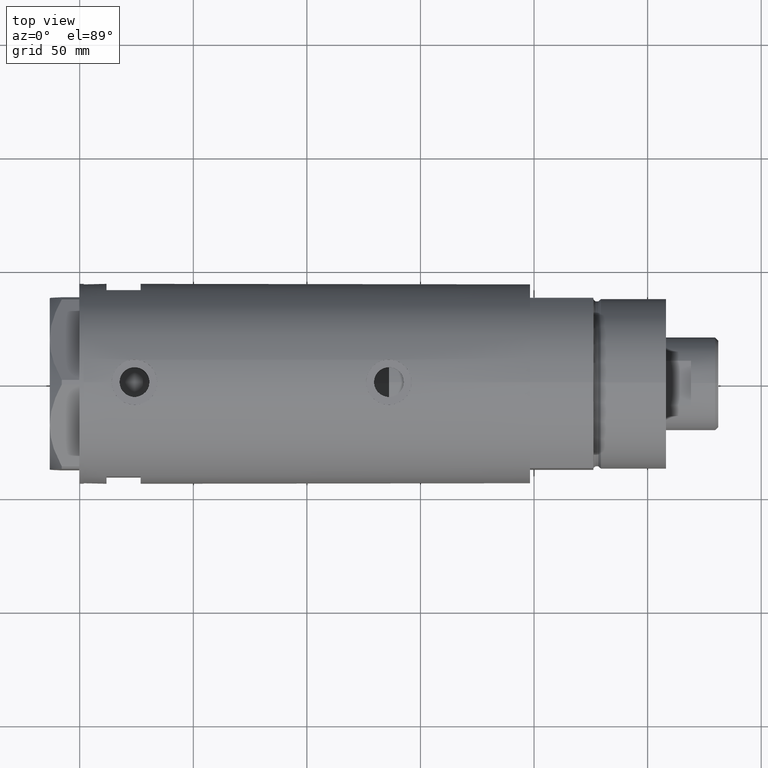
[diagram: clean part render]
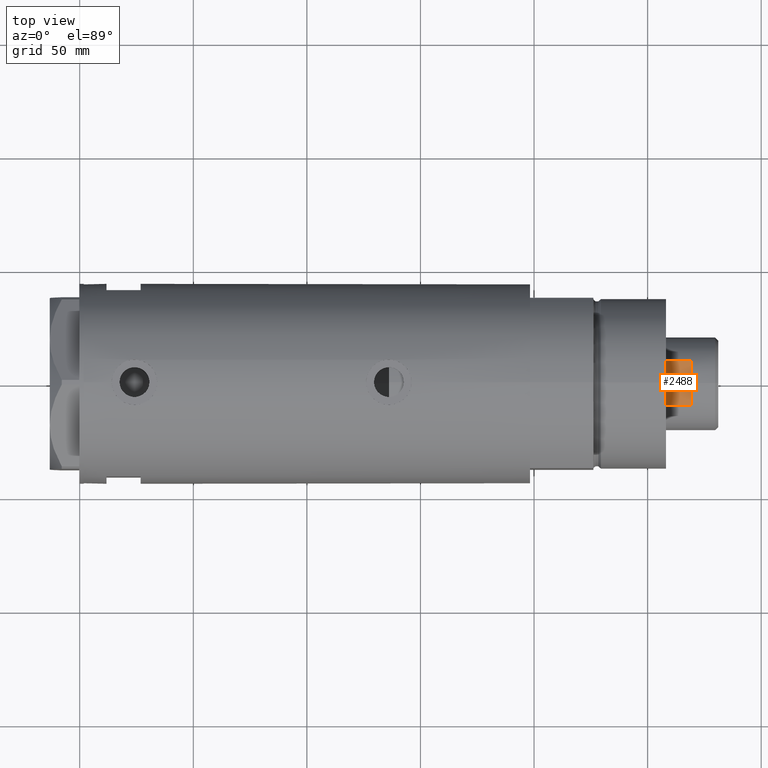
[diagram: same view with one face highlighted and labeled with its STEP entity id]
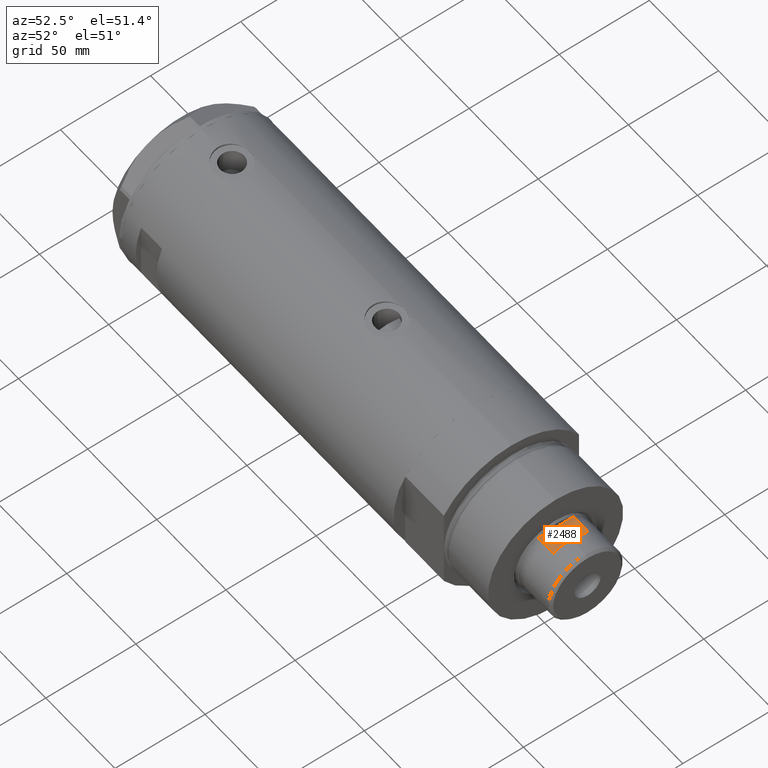
[diagram: same view with one face highlighted and labeled with its STEP entity id]
A machine part, top view. The second image highlights one B-rep face of the part: STEP entity #2488.
A second angle (auxiliary view) of the same face is appended — the face is thin or edge-on in the first view.
In plain terms, the highlighted planar face has unit normal (-0, -0, -1).
Its self-contained STEP definition (entity closure, byte-faithful):
#104 = ORIENTED_EDGE ( 'NONE', *, *, #2390, .T. ) ;
#210 = VECTOR ( 'NONE', #945, 1000.000000000000000 ) ;
#423 = DIRECTION ( 'NONE',  ( -0.000000000000000000, -0.000000000000000000, -1.000000000000000000 ) ) ;
#620 = VECTOR ( 'NONE', #1788, 1000.000000000000000 ) ;
#665 = VERTEX_POINT ( 'NONE', #2163 ) ;
#714 = PLANE ( 'NONE',  #3167 ) ;
#725 = CARTESIAN_POINT ( 'NONE',  ( -17.97852886083842350, -9.850000000000001421, 241.3000000000000114 ) ) ;
#812 = CARTESIAN_POINT ( 'NONE',  ( -17.97852886083842350, -9.850000000000001421, 241.3000000000000114 ) ) ;
#945 = DIRECTION ( 'NONE',  ( 1.761140584748027671E-16, -1.000000000000000000, -0.000000000000000000 ) ) ;
#1011 = CARTESIAN_POINT ( 'NONE',  ( -17.97852886083842705, 9.849999999999997868, 241.3000000000000114 ) ) ;
#1024 = ORIENTED_EDGE ( 'NONE', *, *, #2705, .F. ) ;
#1155 = EDGE_CURVE ( 'NONE', #665, #3524, #2787, .T. ) ;
#1360 = CARTESIAN_POINT ( 'NONE',  ( -17.97852886083842350, -9.850000000000001421, 241.3000000000000114 ) ) ;
#1620 = CARTESIAN_POINT ( 'NONE',  ( -17.97852886083842705, 9.849999999999965894, 230.3000000000000114 ) ) ;
#1788 = DIRECTION ( 'NONE',  ( 1.761140584748027671E-16, -1.000000000000000000, -0.000000000000000000 ) ) ;
#1948 = CARTESIAN_POINT ( 'NONE',  ( -17.97852886083842350, -9.850000000000001421, 230.3000000000000114 ) ) ;
#2067 = CARTESIAN_POINT ( 'NONE',  ( -17.97852886083842705, -9.849999999999972999, 230.3000000000000114 ) ) ;
#2103 = DIRECTION ( 'NONE',  ( -1.761140584748027671E-16, 1.000000000000000000, 0.000000000000000000 ) ) ;
#2163 = CARTESIAN_POINT ( 'NONE',  ( -17.97852886083842705, 9.849999999999997868, 241.3000000000000114 ) ) ;
#2306 = LINE ( 'NONE', #1948, #210 ) ;
#2390 = EDGE_CURVE ( 'NONE', #3524, #2846, #2306, .T. ) ;
#2429 = DIRECTION ( 'NONE',  ( -0.000000000000000000, -0.000000000000000000, -1.000000000000000000 ) ) ;
#2433 = DIRECTION ( 'NONE',  ( 1.000000000000000000, 1.761140584748027671E-16, -0.000000000000000000 ) ) ;
#2475 = CARTESIAN_POINT ( 'NONE',  ( -17.97852886083842705, -9.849999999999996092, 241.3000000000000114 ) ) ;
#2488 = ADVANCED_FACE ( 'NONE', ( #2875 ), #714, .F. ) ;
#2705 = EDGE_CURVE ( 'NONE', #4278, #2846, #3586, .T. ) ;
#2787 = LINE ( 'NONE', #1011, #3469 ) ;
#2846 = VERTEX_POINT ( 'NONE', #2067 ) ;
#2875 = FACE_OUTER_BOUND ( 'NONE', #3455, .T. ) ;
#2919 = VECTOR ( 'NONE', #423, 1000.000000000000000 ) ;
#3158 = ORIENTED_EDGE ( 'NONE', *, *, #4047, .F. ) ;
#3167 = AXIS2_PLACEMENT_3D ( 'NONE', #1360, #2433, #2103 ) ;
#3303 = LINE ( 'NONE', #725, #620 ) ;
#3455 = EDGE_LOOP ( 'NONE', ( #104, #1024, #3158, #3858 ) ) ;
#3469 = VECTOR ( 'NONE', #2429, 1000.000000000000000 ) ;
#3524 = VERTEX_POINT ( 'NONE', #1620 ) ;
#3586 = LINE ( 'NONE', #812, #2919 ) ;
#3858 = ORIENTED_EDGE ( 'NONE', *, *, #1155, .T. ) ;
#4047 = EDGE_CURVE ( 'NONE', #665, #4278, #3303, .T. ) ;
#4278 = VERTEX_POINT ( 'NONE', #2475 ) ;